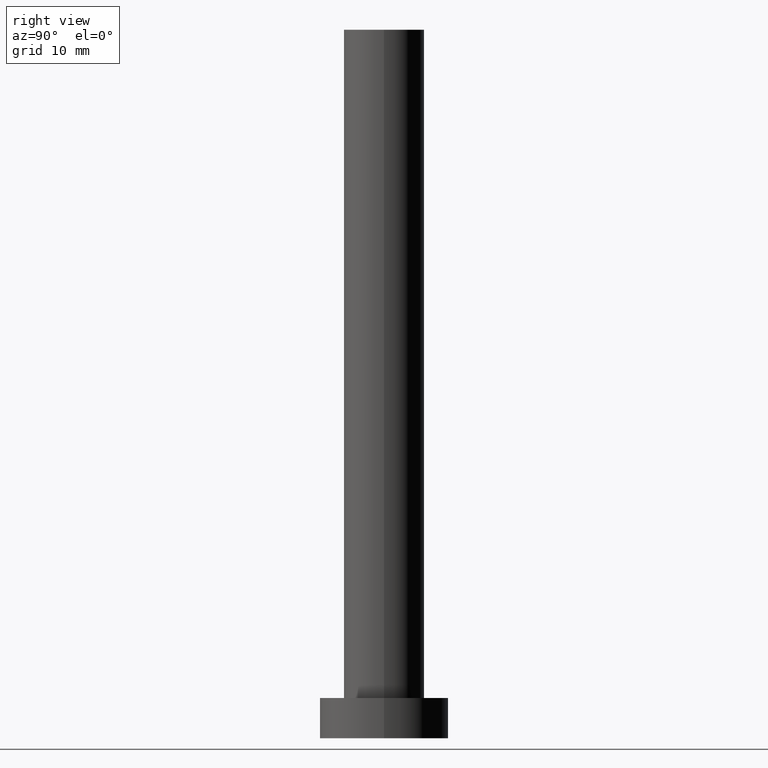
[diagram: clean part render]
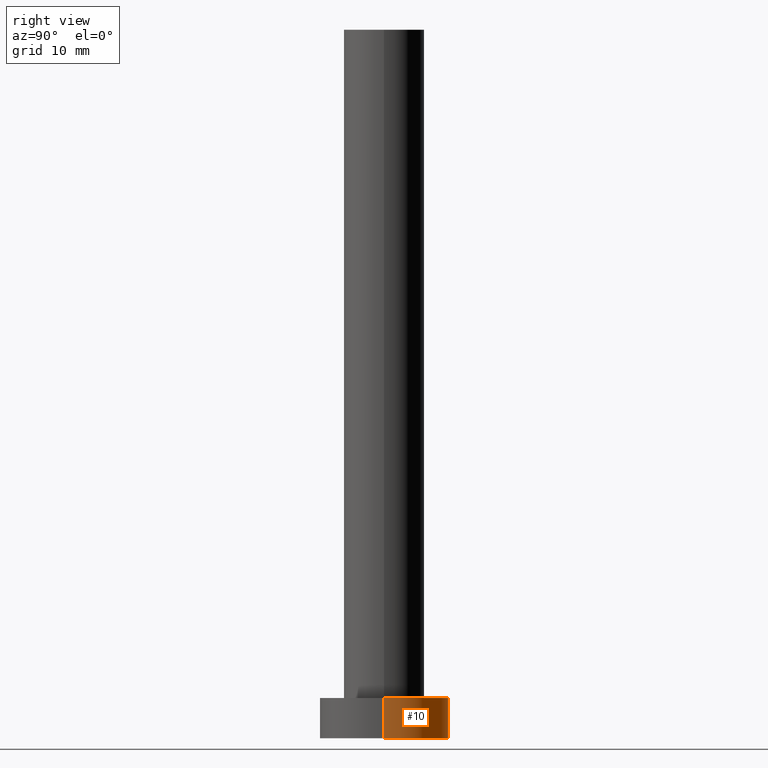
[diagram: same view with one face highlighted and labeled with its STEP entity id]
A machine part, right view. The second image highlights one B-rep face of the part: STEP entity #10.
In plain terms, the highlighted cylindrical surface (partial cylindrical patch) has radius 8 mm, axis along (-0, -0, -1).
Its self-contained STEP definition (entity closure, byte-faithful):
#10 = ADVANCED_FACE ( 'NONE', ( #181 ), #80, .T. ) ;
#22 = AXIS2_PLACEMENT_3D ( 'NONE', #192, #225, #171 ) ;
#24 = CARTESIAN_POINT ( 'NONE',  ( 0.000000000000000000, 0.000000000000000000, 5.000000000000000000 ) ) ;
#43 = VERTEX_POINT ( 'NONE', #86 ) ;
#44 = DIRECTION ( 'NONE',  ( 0.000000000000000000, 0.000000000000000000, 1.000000000000000000 ) ) ;
#46 = AXIS2_PLACEMENT_3D ( 'NONE', #95, #252, #162 ) ;
#50 = CARTESIAN_POINT ( 'NONE',  ( -8.000000000000000000, 0.000000000000000000, 5.000000000000000000 ) ) ;
#52 = CIRCLE ( 'NONE', #113, 8.000000000000000000 ) ;
#61 = ORIENTED_EDGE ( 'NONE', *, *, #144, .F. ) ;
#70 = EDGE_CURVE ( 'NONE', #184, #159, #166, .T. ) ;
#80 = CYLINDRICAL_SURFACE ( 'NONE', #46, 8.000000000000000000 ) ;
#86 = CARTESIAN_POINT ( 'NONE',  ( -8.000000000000000000, 0.000000000000000000, 5.000000000000000000 ) ) ;
#87 = CARTESIAN_POINT ( 'NONE',  ( 8.000000000000000000, 9.797174393178825657E-16, 0.000000000000000000 ) ) ;
#95 = CARTESIAN_POINT ( 'NONE',  ( 0.000000000000000000, 0.000000000000000000, 5.000000000000000000 ) ) ;
#99 = EDGE_LOOP ( 'NONE', ( #61, #134, #249, #117 ) ) ;
#105 = CIRCLE ( 'NONE', #22, 8.000000000000000000 ) ;
#113 = AXIS2_PLACEMENT_3D ( 'NONE', #24, #44, #145 ) ;
#114 = VERTEX_POINT ( 'NONE', #189 ) ;
#117 = ORIENTED_EDGE ( 'NONE', *, *, #201, .F. ) ;
#122 = CARTESIAN_POINT ( 'NONE',  ( 8.000000000000000000, 9.797174393178825657E-16, 5.000000000000000000 ) ) ;
#128 = VECTOR ( 'NONE', #207, 1000.000000000000000 ) ;
#134 = ORIENTED_EDGE ( 'NONE', *, *, #70, .T. ) ;
#143 = CARTESIAN_POINT ( 'NONE',  ( 8.000000000000000000, 9.797174393178825657E-16, 5.000000000000000000 ) ) ;
#144 = EDGE_CURVE ( 'NONE', #184, #43, #52, .T. ) ;
#145 = DIRECTION ( 'NONE',  ( 1.000000000000000000, 0.000000000000000000, 0.000000000000000000 ) ) ;
#146 = VECTOR ( 'NONE', #187, 1000.000000000000000 ) ;
#159 = VERTEX_POINT ( 'NONE', #87 ) ;
#162 = DIRECTION ( 'NONE',  ( -1.000000000000000000, 0.000000000000000000, 0.000000000000000000 ) ) ;
#166 = LINE ( 'NONE', #122, #128 ) ;
#171 = DIRECTION ( 'NONE',  ( 1.000000000000000000, 0.000000000000000000, 0.000000000000000000 ) ) ;
#181 = FACE_OUTER_BOUND ( 'NONE', #99, .T. ) ;
#184 = VERTEX_POINT ( 'NONE', #143 ) ;
#187 = DIRECTION ( 'NONE',  ( -0.000000000000000000, -0.000000000000000000, -1.000000000000000000 ) ) ;
#189 = CARTESIAN_POINT ( 'NONE',  ( -8.000000000000000000, 0.000000000000000000, 0.000000000000000000 ) ) ;
#192 = CARTESIAN_POINT ( 'NONE',  ( 0.000000000000000000, 0.000000000000000000, 0.000000000000000000 ) ) ;
#199 = EDGE_CURVE ( 'NONE', #159, #114, #105, .T. ) ;
#201 = EDGE_CURVE ( 'NONE', #43, #114, #240, .T. ) ;
#207 = DIRECTION ( 'NONE',  ( -0.000000000000000000, -0.000000000000000000, -1.000000000000000000 ) ) ;
#225 = DIRECTION ( 'NONE',  ( 0.000000000000000000, 0.000000000000000000, 1.000000000000000000 ) ) ;
#240 = LINE ( 'NONE', #50, #146 ) ;
#249 = ORIENTED_EDGE ( 'NONE', *, *, #199, .T. ) ;
#252 = DIRECTION ( 'NONE',  ( -0.000000000000000000, -0.000000000000000000, -1.000000000000000000 ) ) ;